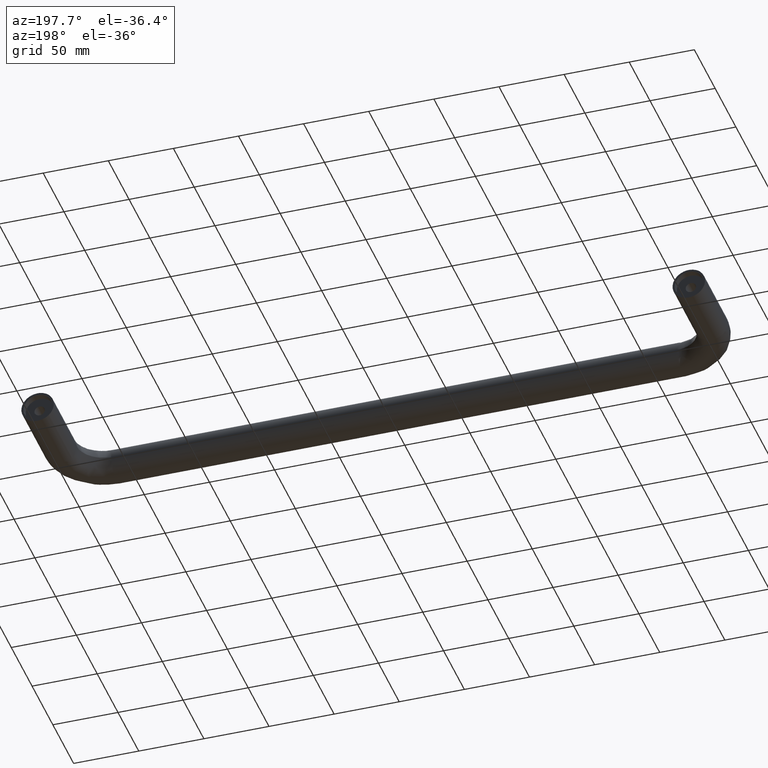
[diagram: clean part render]
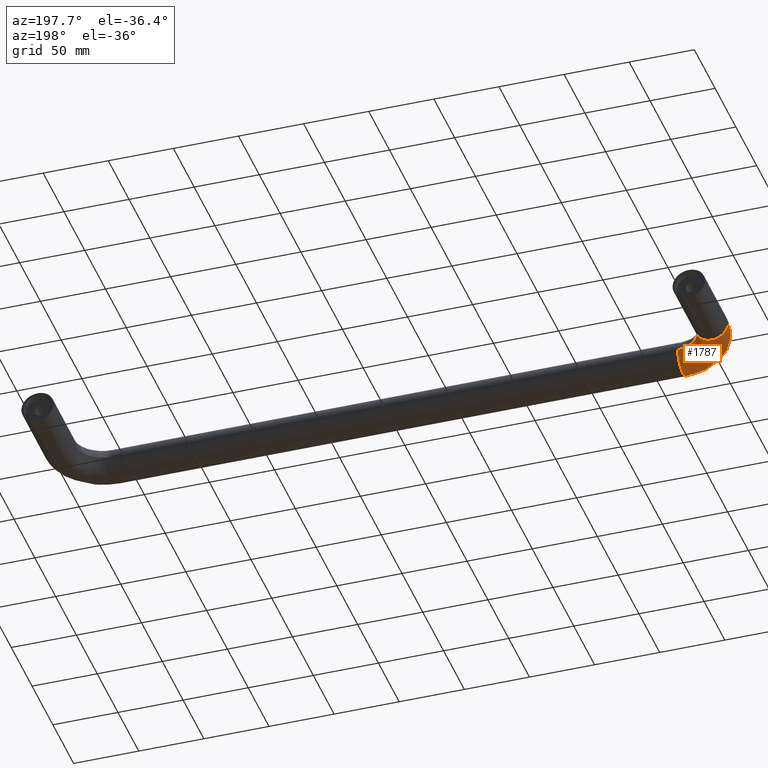
[diagram: same view with one face highlighted and labeled with its STEP entity id]
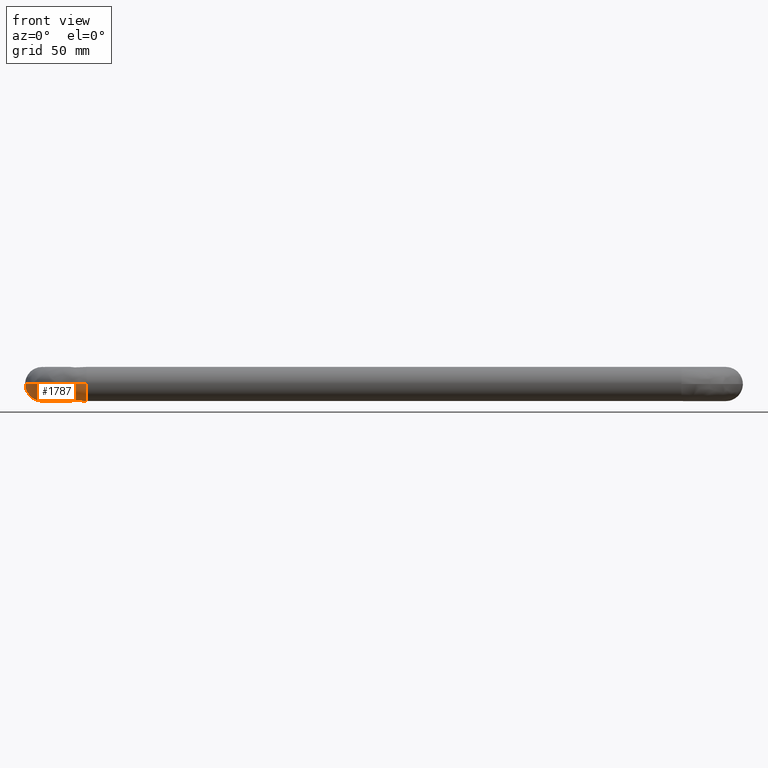
[diagram: same view with one face highlighted and labeled with its STEP entity id]
A machine part, auxiliary view. The second image highlights one B-rep face of the part: STEP entity #1787.
A second angle (front view) of the same face is appended — the face is thin or edge-on in the first view.
In plain terms, the highlighted face is a freeform B-spline surface patch.
Its self-contained STEP definition (entity closure, byte-faithful):
#1358=CARTESIAN_POINT('',(32.500077566518513,-99.999999999866304,-1.530758E-015));
#1359=VERTEX_POINT('',#1358);
#1373=CARTESIAN_POINT('',(32.500041150086830,-88.263106746120087,-12.476684980152861));
#1374=VERTEX_POINT('',#1373);
#1375=CARTESIAN_POINT('',(32.500077566518513,-99.999999999866304,-1.530758E-015));
#1376=CARTESIAN_POINT('',(32.500077566518527,-99.999999999866361,-11.758825834428929));
#1377=CARTESIAN_POINT('',(32.500041150086830,-88.263106746120087,-12.476684980152852));
#1385=(BOUNDED_CURVE()B_SPLINE_CURVE(2,(#1375,#1376,#1377),.UNSPECIFIED.,.F.,.U.)B_SPLINE_CURVE_WITH_KNOTS((3,3),(0.0,0.319110616285650),.UNSPECIFIED.)CURVE()GEOMETRIC_REPRESENTATION_ITEM()RATIONAL_B_SPLINE_CURVE((1.0,0.719603993315654,0.976072041613770))REPRESENTATION_ITEM(''));
#1386=EDGE_CURVE('',#1359,#1374,#1385,.T.);
#1419=CARTESIAN_POINT('',(32.499999998223998,-75.0,-8.839280E-016));
#1420=VERTEX_POINT('',#1419);
#1421=CARTESIAN_POINT('',(32.500041150086822,-88.263106746120101,-12.476684980152861));
#1422=CARTESIAN_POINT('',(32.500039967334160,-87.881909542168998,-12.500000000002128));
#1423=CARTESIAN_POINT('',(32.500038782371277,-87.499999999933280,-12.500000000002100));
#1424=CARTESIAN_POINT('',(32.499999998224013,-75.000000000000057,-12.500000000001014));
#1425=CARTESIAN_POINT('',(32.499999998223998,-75.0,-8.839280E-016));
#1433=(BOUNDED_CURVE()B_SPLINE_CURVE(2,(#1421,#1422,#1423,#1424,#1425),.UNSPECIFIED.,.F.,.U.)B_SPLINE_CURVE_WITH_KNOTS((3,2,3),(0.319110616285650,0.333333333333333,0.666666666666667),.UNSPECIFIED.)CURVE()GEOMETRIC_REPRESENTATION_ITEM()RATIONAL_B_SPLINE_CURVE((0.976072041613770,0.987502787870893,1.0,0.707106781186547,1.0))REPRESENTATION_ITEM(''));
#1434=EDGE_CURVE('',#1374,#1420,#1433,.T.);
#1643=CARTESIAN_POINT('',(-12.499999999999989,-55.000000000535692,-1.530758E-015));
#1644=VERTEX_POINT('',#1643);
#1645=CARTESIAN_POINT('',(-12.499999999999998,-55.000000000535699,-1.530758E-015));
#1646=CARTESIAN_POINT('',(-12.499999999464299,-100.000077566551940,-1.530758E-015));
#1647=CARTESIAN_POINT('',(32.500077566518513,-99.999999999866304,-1.530758E-015));
#1655=(BOUNDED_CURVE()B_SPLINE_CURVE(2,(#1645,#1646,#1647),.UNSPECIFIED.,.F.,.U.)B_SPLINE_CURVE_WITH_KNOTS((3,3),(-1.747842683656804,-0.278271349074432),.UNSPECIFIED.)CURVE()GEOMETRIC_REPRESENTATION_ITEM()RATIONAL_B_SPLINE_CURVE((0.893710737959599,0.628667701523981,0.884455659746061))REPRESENTATION_ITEM(''));
#1656=EDGE_CURVE('',#1644,#1359,#1655,.T.);
#1661=CARTESIAN_POINT('',(12.500000000000000,-55.000000001631861,-8.843090E-016));
#1662=VERTEX_POINT('',#1661);
#1663=CARTESIAN_POINT('',(12.500000000000007,-55.000000001631854,-1.768618E-015));
#1664=CARTESIAN_POINT('',(12.500000001631864,-74.999999998223998,-1.737922E-015));
#1665=CARTESIAN_POINT('',(32.499999998224006,-75.0,-1.767856E-015));
#1673=(BOUNDED_CURVE()B_SPLINE_CURVE(2,(#1663,#1664,#1665),.UNSPECIFIED.,.F.,.U.)B_SPLINE_CURVE_WITH_KNOTS((3,3),(-1.747842683584010,-0.278273131038123),.UNSPECIFIED.)CURVE()GEOMETRIC_REPRESENTATION_ITEM()RATIONAL_B_SPLINE_CURVE((0.893710737933342,0.628668022920892,0.884455039423276))REPRESENTATION_ITEM(''));
#1674=EDGE_CURVE('',#1662,#1420,#1673,.T.);
#1722=CARTESIAN_POINT('',(12.547894752432208,-53.616708205049363,0.349459221148219));
#1723=CARTESIAN_POINT('',(10.957299741758408,-76.558880764059225,0.349459221148219));
#1724=CARTESIAN_POINT('',(33.898271603090038,-74.951061037548641,0.349459221148219));
#1725=CARTESIAN_POINT('',(12.547894752432212,-53.616708205049363,0.175747192080911));
#1726=CARTESIAN_POINT('',(10.957299741758412,-76.558880764059239,0.175747192080911));
#1727=CARTESIAN_POINT('',(33.898271603090038,-74.951061037548655,0.175747192080912));
#1728=CARTESIAN_POINT('',(12.547894752432207,-53.616708205049378,-12.500000000000000));
#1729=CARTESIAN_POINT('',(10.957299741758410,-76.558880764059268,-12.500000000000000));
#1730=CARTESIAN_POINT('',(33.898271603090024,-74.951061037548655,-12.499999999999996));
#1731=CARTESIAN_POINT('',(0.077828972702343,-52.752150833205214,-12.500000000000000));
#1732=CARTESIAN_POINT('',(-2.506887919642578,-90.033181241596253,-12.499999999999996));
#1733=CARTESIAN_POINT('',(34.772191355021320,-87.420474186016563,-12.500000000000000));
#1734=CARTESIAN_POINT('',(-12.392236807027531,-51.887593461361107,-12.499999999999996));
#1735=CARTESIAN_POINT('',(-15.971075581043580,-103.507481719133300,-12.499999999999995));
#1736=CARTESIAN_POINT('',(35.646111106952574,-99.889887334484484,-12.499999999999995));
#1737=CARTESIAN_POINT('',(-12.392236807027521,-51.887593461361078,0.175747192080917));
#1738=CARTESIAN_POINT('',(-15.971075581043571,-103.507481719133300,0.175747192080917));
#1739=CARTESIAN_POINT('',(35.646111106952574,-99.889887334484470,0.175747192080917));
#1740=CARTESIAN_POINT('',(-12.392236807027519,-51.887593461361078,0.349459221148228));
#1741=CARTESIAN_POINT('',(-15.971075581043571,-103.507481719133300,0.349459221148228));
#1742=CARTESIAN_POINT('',(35.646111106952574,-99.889887334484470,0.349459221148228));
#1750=(BOUNDED_SURFACE()B_SPLINE_SURFACE(2,2,((#1722,#1725,#1728,#1731,#1734,#1737,#1740),(#1723,#1726,#1729,#1732,#1735,#1738,#1741),(#1724,#1727,#1730,#1733,#1736,#1739,#1742)),.UNSPECIFIED.,.F.,.F.,.U.)B_SPLINE_SURFACE_WITH_KNOTS((3,3),(3,1,2,1,3),(0.0,82.006278072936908),(0.0,0.414213562373087,21.124891681027862,41.835569799682631,42.249783362055730),.UNSPECIFIED.)GEOMETRIC_REPRESENTATION_ITEM()RATIONAL_B_SPLINE_SURFACE(((0.932283909603369,0.926885957839421,0.651590417878037,0.921488006075472,0.651590417878037,0.926885957839421,0.932283909603369),(0.608398006678249,0.604875363994510,0.425220587123830,0.601352721310771,0.425220587123830,0.604875363994510,0.608398006678249),(0.921984993315845,0.916646672585714,0.644392315349019,0.911308351855582,0.644392315349019,0.916646672585714,0.921984993315845)))REPRESENTATION_ITEM('')SURFACE());
#1751=ORIENTED_EDGE('',*,*,#1656,.F.);
#1752=CARTESIAN_POINT('',(8.604428074660255,-55.000000001461117,-9.067183548818569));
#1753=VERTEX_POINT('',#1752);
#1754=CARTESIAN_POINT('',(-12.499999999999989,-55.000000000535692,-1.530758E-015));
#1755=CARTESIAN_POINT('',(-12.499999999999991,-55.000000000535685,-12.500000000000002));
#1756=CARTESIAN_POINT('',(3.552714E-015,-55.000000001083777,-12.500000000000000));
#1757=CARTESIAN_POINT('',(4.986991031527222,-55.000000001302425,-12.500000000000005));
#1758=CARTESIAN_POINT('',(8.604428074661145,-55.000000001461046,-9.067183548819509));
#1766=(BOUNDED_CURVE()B_SPLINE_CURVE(2,(#1754,#1755,#1756,#1757,#1758),.UNSPECIFIED.,.F.,.U.)B_SPLINE_CURVE_WITH_KNOTS((3,2,3),(0.0,0.333333333333333,0.494732610747512),.UNSPECIFIED.)CURVE()GEOMETRIC_REPRESENTATION_ITEM()RATIONAL_B_SPLINE_CURVE((1.0,0.707106781186547,1.0,0.858181738371988,0.853699666449352))REPRESENTATION_ITEM(''));
#1767=EDGE_CURVE('',#1644,#1753,#1766,.T.);
#1768=ORIENTED_EDGE('',*,*,#1767,.T.);
#1769=CARTESIAN_POINT('',(8.604428074660255,-55.000000001461117,-9.067183548818569));
#1770=CARTESIAN_POINT('',(12.500000000000002,-55.000000001631861,-5.370427189937656));
#1771=CARTESIAN_POINT('',(12.500000000000000,-55.000000001631861,-8.843090E-016));
#1779=(BOUNDED_CURVE()B_SPLINE_CURVE(2,(#1769,#1770,#1771),.UNSPECIFIED.,.F.,.U.)B_SPLINE_CURVE_WITH_KNOTS((3,3),(0.494732610747512,0.666666666666667),.UNSPECIFIED.)CURVE()GEOMETRIC_REPRESENTATION_ITEM()RATIONAL_B_SPLINE_CURVE((0.853699666449352,0.848925042814560,1.0))REPRESENTATION_ITEM(''));
#1780=EDGE_CURVE('',#1753,#1662,#1779,.T.);
#1781=ORIENTED_EDGE('',*,*,#1780,.T.);
#1782=ORIENTED_EDGE('',*,*,#1674,.T.);
#1783=ORIENTED_EDGE('',*,*,#1434,.F.);
#1784=ORIENTED_EDGE('',*,*,#1386,.F.);
#1785=EDGE_LOOP('',(#1751,#1768,#1781,#1782,#1783,#1784));
#1786=FACE_OUTER_BOUND('',#1785,.T.);
#1787=ADVANCED_FACE('',(#1786),#1750,.T.);